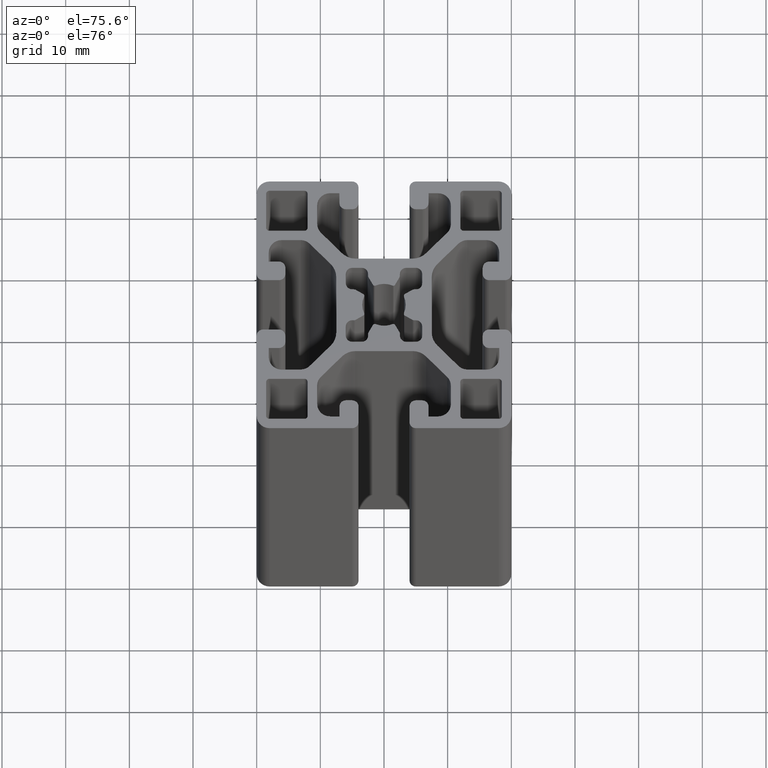
[diagram: clean part render]
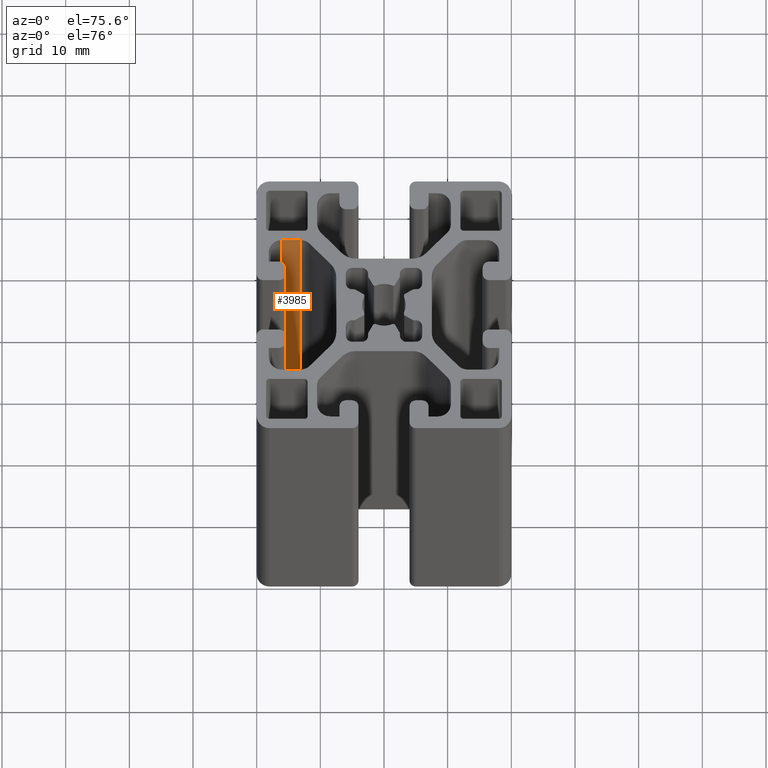
[diagram: same view with one face highlighted and labeled with its STEP entity id]
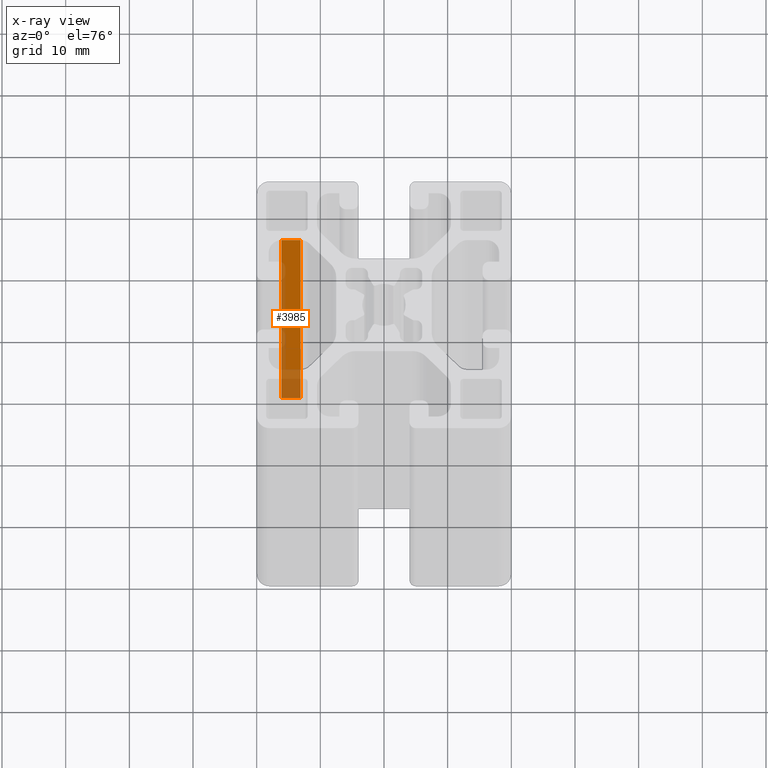
[diagram: x-ray of the same camera — body ghosted, the highlighted face saturated]
A machine part, auxiliary view. The second image highlights one B-rep face of the part: STEP entity #3985.
The next image is the same camera in x-ray: the body ghosted, the highlighted face saturated — about 32% of this face is hidden behind the body in this view.
In plain terms, the highlighted planar face has unit normal (-0, 1, 0).
Its self-contained STEP definition (entity closure, byte-faithful):
#94=PLANE('',#4339);
#271=FACE_OUTER_BOUND('',#473,.T.);
#473=EDGE_LOOP('',(#3117,#3118,#3119,#3120));
#825=LINE('',#6525,#1225);
#826=LINE('',#6529,#1226);
#827=LINE('',#6531,#1227);
#828=LINE('',#6532,#1228);
#1225=VECTOR('',#5319,100.);
#1226=VECTOR('',#5324,3.00380592228743);
#1227=VECTOR('',#5325,100.);
#1228=VECTOR('',#5326,3.00380592228743);
#1833=VERTEX_POINT('',#6522);
#1834=VERTEX_POINT('',#6524);
#1835=VERTEX_POINT('',#6528);
#1836=VERTEX_POINT('',#6530);
#2374=EDGE_CURVE('',#1834,#1833,#825,.T.);
#2376=EDGE_CURVE('',#1835,#1833,#826,.T.);
#2377=EDGE_CURVE('',#1836,#1835,#827,.T.);
#2378=EDGE_CURVE('',#1834,#1836,#828,.T.);
#3117=ORIENTED_EDGE('',*,*,#2376,.F.);
#3118=ORIENTED_EDGE('',*,*,#2377,.F.);
#3119=ORIENTED_EDGE('',*,*,#2378,.F.);
#3120=ORIENTED_EDGE('',*,*,#2374,.T.);
#3985=ADVANCED_FACE('',(#271),#94,.F.);
#4339=AXIS2_PLACEMENT_3D('',#6527,#5322,#5323);
#5319=DIRECTION('',(0.,0.,1.));
#5322=DIRECTION('center_axis',(-4.43526534009778E-15,1.,0.));
#5323=DIRECTION('ref_axis',(-1.,-4.44089209850063E-15,0.));
#5324=DIRECTION('',(1.,4.43526534009778E-15,0.));
#5325=DIRECTION('',(0.,0.,1.));
#5326=DIRECTION('',(-1.,-4.43526534009778E-15,0.));
#6522=CARTESIAN_POINT('',(-13.0961870777126,10.499994,100.));
#6524=CARTESIAN_POINT('',(-13.0961870777126,10.499994,0.));
#6525=CARTESIAN_POINT('',(-13.0961870777126,10.499994,0.));
#6527=CARTESIAN_POINT('Origin',(-13.0961870777126,10.499994,0.));
#6528=CARTESIAN_POINT('',(-16.099993,10.499994,100.));
#6529=CARTESIAN_POINT('',(-6.54809353885631,10.499994,100.));
#6530=CARTESIAN_POINT('',(-16.099993,10.499994,0.));
#6531=CARTESIAN_POINT('',(-16.099993,10.499994,0.));
#6532=CARTESIAN_POINT('',(-6.54809353885631,10.499994,0.));